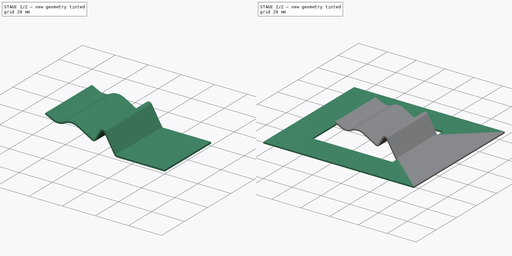
[diagram: build sequence overview — one tinted view per stage of 2, left to right]
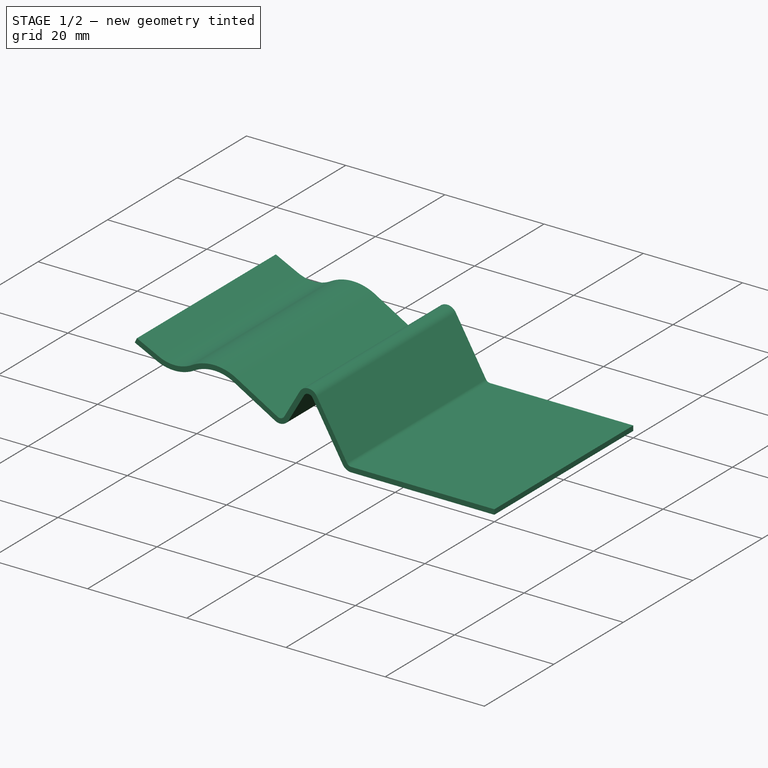
[diagram: stage 1 of 2 — iso view after this stage's code; geometry added in this stage tinted green]
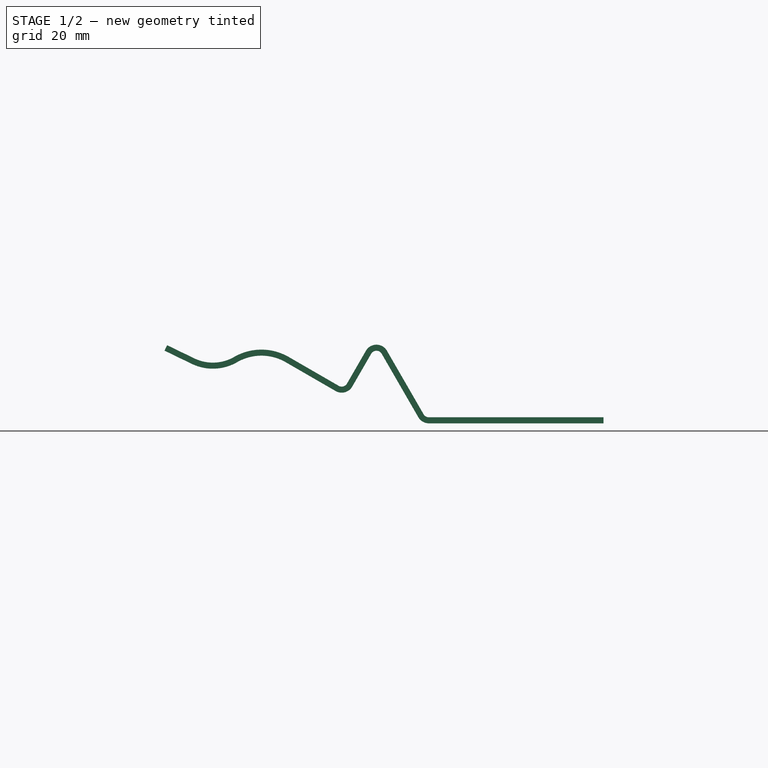
[diagram: stage 1 of 2 — front view after this stage's code; geometry added in this stage tinted green]
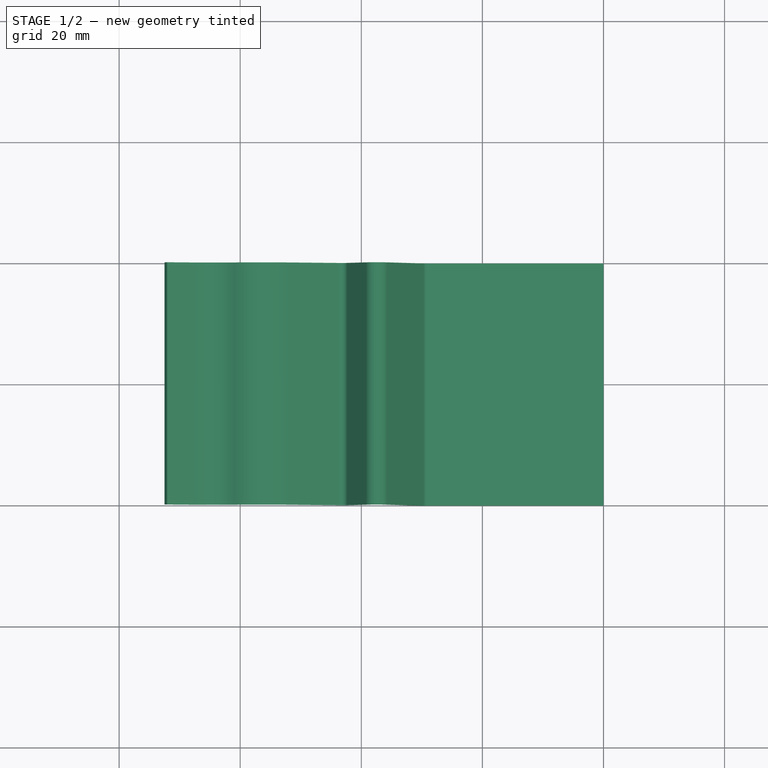
[diagram: stage 1 of 2 — top view after this stage's code; geometry added in this stage tinted green]
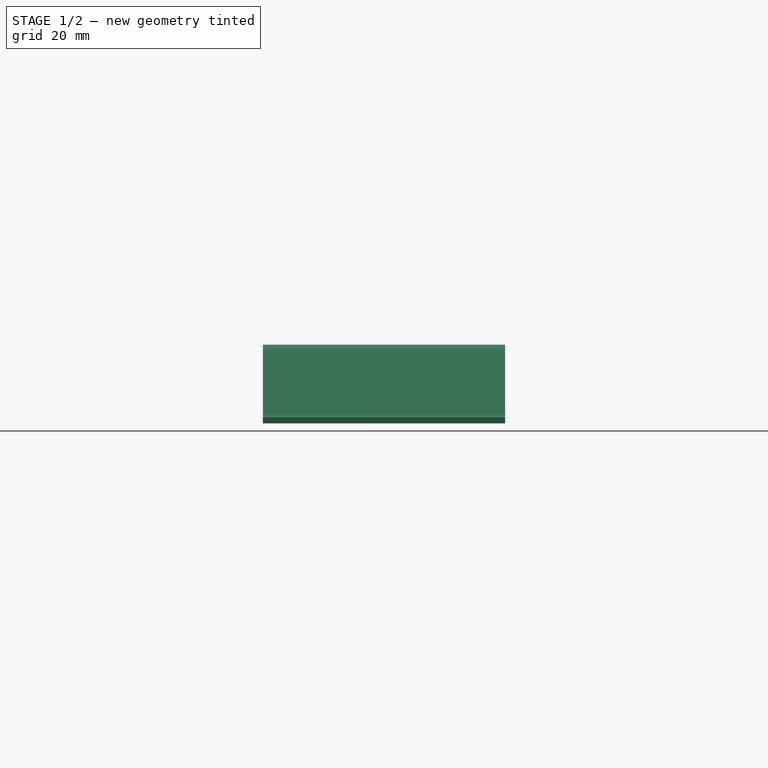
[diagram: stage 1 of 2 — right view after this stage's code; geometry added in this stage tinted green]
FCSTD DOCUMENT  (FreeCAD 0.19R23579 (Git))
Label: compicated_profile_extend_bend
License: All rights reserved
LicenseURL: http://en.wikipedia.org/wiki/All_rights_reserved
objects: Sketcher::SketchObject×6, PartDesign::FeaturePython×1, PartDesign::Pad×1, PartDesign::Body×1, Part::Feature×1, App::Part×1
note: 11 computed .brp shape members not serialized (recipe doc carries the construction recipe); baked Part::Feature solids carry a one-line shape summary decoded from their .brp

FEATURE [Sketcher::SketchObject] Sketch
  MapMode = 5
  Placement = pos=(0,0,0) rot=(1,0,0;1.5708rad)
  Support = -> [XZ_Plane]
  sketch-geometry (7):
    g0: LineSegment StartX=3e-16 StartY=-2.9e-15 StartZ=0 EndX=-30 EndY=-2.9e-15 EndZ=0
    g1: LineSegment StartX=-30 StartY=-2.9e-15 StartZ=0 EndX=-37.5 EndY=12.9904 EndZ=0
    g2: LineSegment StartX=-37.5 StartY=12.9904 StartZ=0 EndX=-42.5 EndY=4.33013 EndZ=0
    g3: LineSegment StartX=-42.5 StartY=4.33013 StartZ=0 EndX=-52.5 EndY=10.1036 EndZ=0
    g4: ArcOfCircle CenterX=-56.5 CenterY=3.17543 CenterZ=0 NormalX=0 NormalY=0 NormalZ=1 AngleXU=0 Radius=8 StartAngle=1.0472 EndAngle=2.09545
    g5: ArcOfCircle CenterX=-64.5147 CenterY=17.0234 CenterZ=0 NormalX=0 NormalY=0 NormalZ=1 AngleXU=0 Radius=8 StartAngle=4.26171 EndAngle=5.23705
    g6: LineSegment StartX=-67.9992 StartY=9.82214 StartZ=0 EndX=-72.5 EndY=12 EndZ=0
  constraints (20):
    c: Coincident(g-1,g0)
    c: Horizontal(g0)
    c: Coincident(g0,g1)
    c: Coincident(g1,g2)
    c: Coincident(g2,g3)
    c: Tangent(g3,g4) = -1.5708
    c: Tangent(g4,g5) = 1.5708
    c: Tangent(g6,g5) = 1.5708
    c: DistanceX(g0,g0) = 30
    c: DistanceX(g3,g3) = 10
    c: Distance(g6) = 5
    c: Perpendicular(g2,g3)
    c: Angle(g2,g1) = 1.0472
    c: Angle(g0,g1) = 2.0944
    c: Radius(g4) = 8
    c: Equal(g5,g4)
    c: DistanceY(g6) = 12
    c: DistanceX(g6,g1) = 35
    c: Distance(g1) = 15
    c: Distance(g2) = 10
FEATURE [PartDesign::FeaturePython] BaseBend  # WARN: FeaturePython — macro-defined, semantics opaque (R4)
  BendSide = 0
  BendSketch = -> Sketch
  MidPlane = true
  Reverse = false
  length = 40
  radius = 1
  thickness = 1
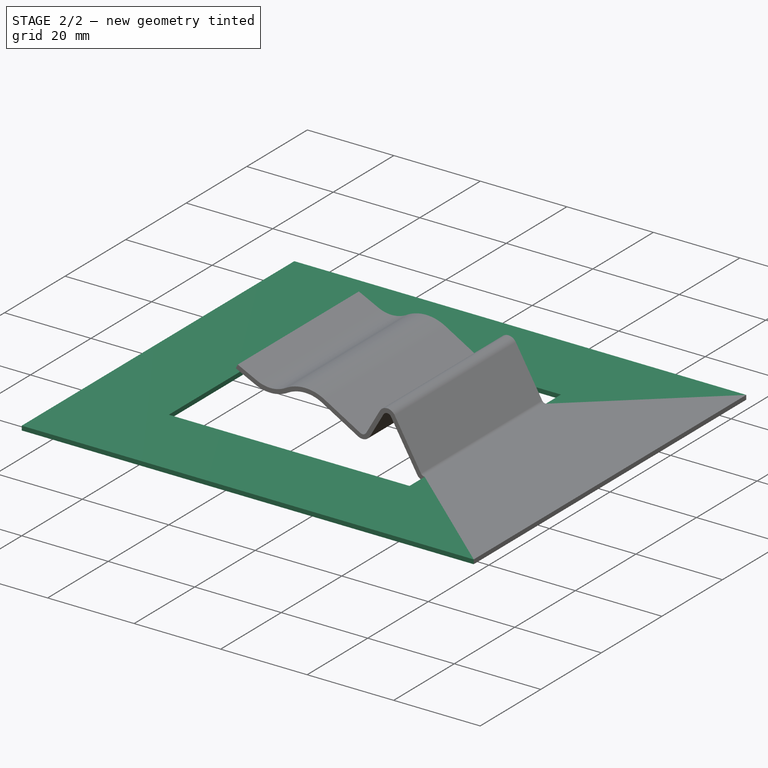
[diagram: stage 2 of 2 — iso view after this stage's code; geometry added in this stage tinted green]
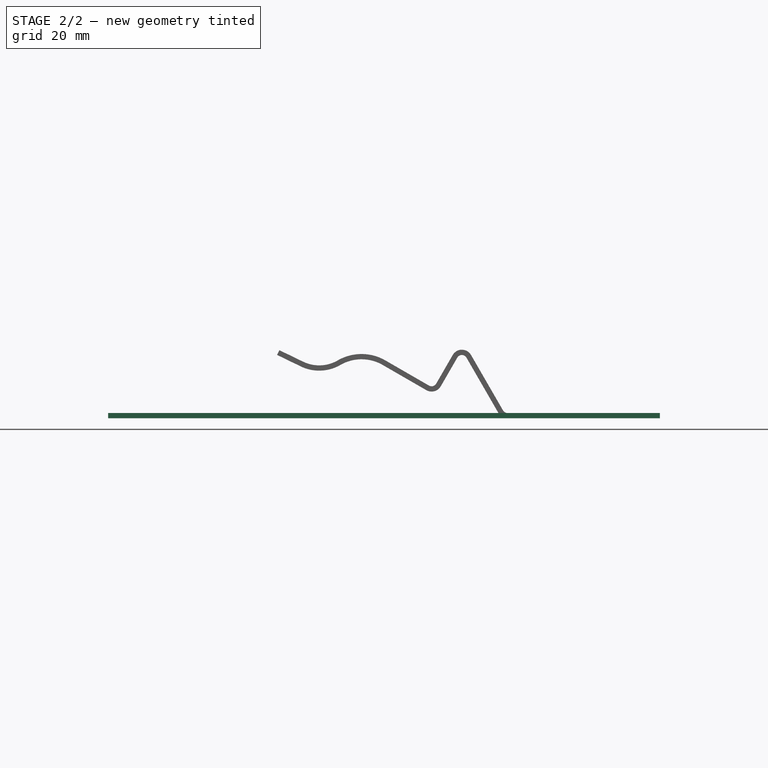
[diagram: stage 2 of 2 — front view after this stage's code; geometry added in this stage tinted green]
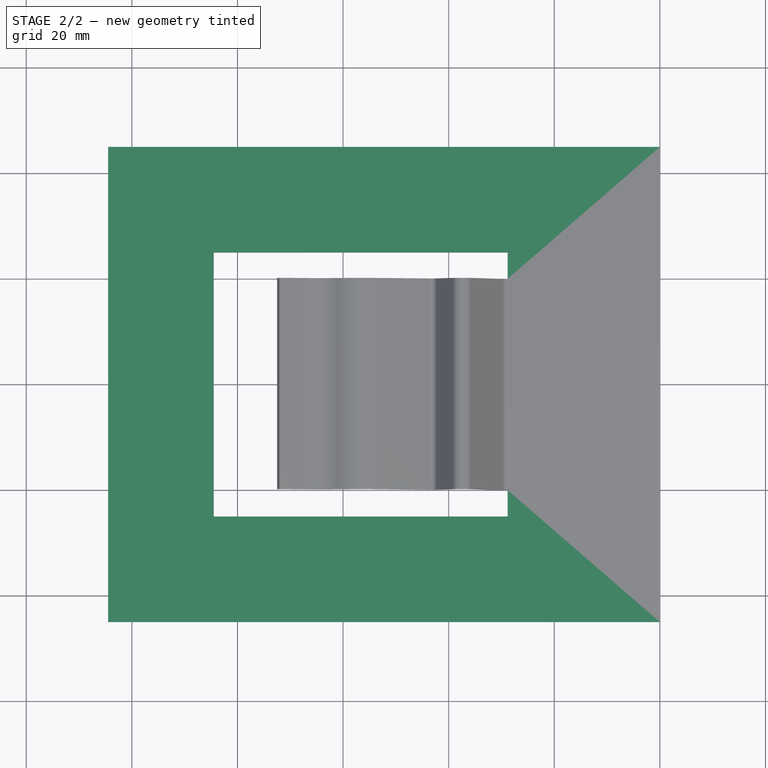
[diagram: stage 2 of 2 — top view after this stage's code; geometry added in this stage tinted green]
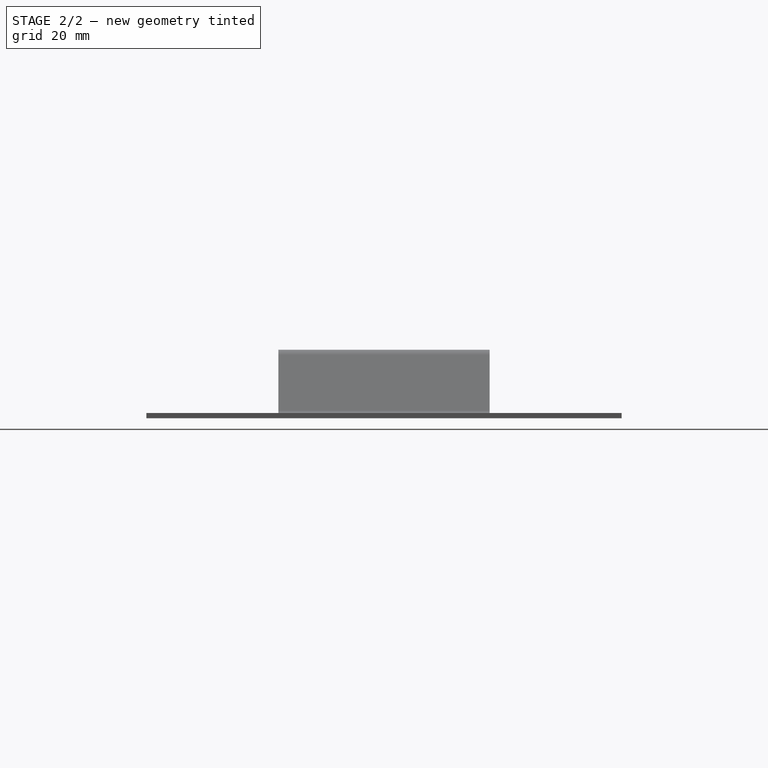
[diagram: stage 2 of 2 — right view after this stage's code; geometry added in this stage tinted green]
FEATURE [Sketcher::SketchObject] Sketch001
  ExternalGeometry = -> [BaseBend]
  MapMode = 5
  Support = -> [XY_Plane]
  sketch-geometry (8):
    g0: LineSegment StartX=0 StartY=45 StartZ=0 EndX=-104.5 EndY=45 EndZ=0
    g1: LineSegment StartX=-104.5 StartY=45 StartZ=0 EndX=-104.5 EndY=-45 EndZ=0
    g2: LineSegment StartX=-104.5 StartY=-45 StartZ=0 EndX=0 EndY=-45 EndZ=0
    g3: LineSegment StartX=-28.8453 StartY=25 StartZ=0 EndX=-84.5 EndY=25 EndZ=0
    g4: LineSegment StartX=-84.5 StartY=25 StartZ=0 EndX=-84.5 EndY=-25 EndZ=0
    g5: LineSegment StartX=-84.5 StartY=-25 StartZ=0 EndX=-28.8453 EndY=-25 EndZ=0
    g6: LineSegment StartX=0 StartY=-45 StartZ=0 EndX=0 EndY=45 EndZ=0
    g7: LineSegment StartX=-28.8453 StartY=-25 StartZ=0 EndX=-28.8453 EndY=25 EndZ=0
  constraints (22):
    c: Coincident(g0,g1)
    c: Coincident(g1,g2)
    c: Coincident(g6,g0)
    c: Horizontal(g0)
    c: Horizontal(g2)
    c: Vertical(g1)
    c: Coincident(g3,g4)
    c: Coincident(g4,g5)
    c: Horizontal(g3)
    c: Horizontal(g5)
    c: Vertical(g4)
    c: DistanceX(g4,g-3) = 12
    c: DistanceY(g4,g-3) = 5
    c: Vertical(g6)
    c: Coincident(g7,g5)
    c: Coincident(g7,g3)
    c: Symmetric(g6,g6,g-1)
    c: Coincident(g2,g6)
    c: PointOnObject(g-4,g7)
    c: Symmetric(g3,g5,g-1)
    c: DistanceY(g1,g4) = 20
    c: DistanceX(g1,g4) = 20
FEATURE [PartDesign::Pad] Pad
  BaseFeature = -> BaseBend
  Direction = (1,1,1)
  Length = 10
  Length2 = 100
  Profile = -> Sketch001
  Refine = true
  Type = 3
  UpToFace = -> BaseBend [Face35]
FEATURE [PartDesign::Body] Body
  Group = -> [Sketch,BaseBend,Sketch001,Pad]
  Origin = -> Origin
  Tip = -> Pad
FEATURE [Part::Feature] Unfold
  shape: bbox 104.5 x 90 x 1 mm, 14 faces (baked)
FEATURE [Sketcher::SketchObject] Unfold_Sketch
  sketch-geometry (12):
    g0: LineSegment StartX=-45 StartY=0 StartZ=0 EndX=45 EndY=0 EndZ=0
    g1: LineSegment StartX=45 StartY=0 StartZ=0 EndX=45 EndY=104.5 EndZ=0
    g2: LineSegment StartX=45 StartY=104.5 StartZ=0 EndX=-45 EndY=104.5 EndZ=0
    g3: LineSegment StartX=-45 StartY=104.5 StartZ=0 EndX=-45 EndY=0 EndZ=0
    g4: LineSegment StartX=-25 StartY=28.8453 StartZ=0 EndX=-20 EndY=28.8453 EndZ=0
    g5: LineSegment StartX=-25 StartY=84.5 StartZ=0 EndX=-25 EndY=28.8453 EndZ=0
    g6: LineSegment StartX=25 StartY=84.5 StartZ=0 EndX=-25 EndY=84.5 EndZ=0
    g7: LineSegment StartX=25 StartY=28.8453 StartZ=0 EndX=25 EndY=84.5 EndZ=0
    g8: LineSegment StartX=20 StartY=28.8453 StartZ=0 EndX=25 EndY=28.8453 EndZ=0
    g9: LineSegment StartX=-20 StartY=82.7096 StartZ=0 EndX=20 EndY=82.7096 EndZ=0
    g10: LineSegment StartX=-20 StartY=28.8453 StartZ=0 EndX=-20 EndY=82.7096 EndZ=0
    g11: LineSegment StartX=20 StartY=82.7096 StartZ=0 EndX=20 EndY=28.8453 EndZ=0
FEATURE [Sketcher::SketchObject] Unfold_Sketch_Outline
  sketch-geometry (4):
    g0: LineSegment StartX=-45 StartY=0 StartZ=0 EndX=45 EndY=0 EndZ=0
    g1: LineSegment StartX=45 StartY=0 StartZ=0 EndX=45 EndY=104.5 EndZ=0
    g2: LineSegment StartX=45 StartY=104.5 StartZ=0 EndX=-45 EndY=104.5 EndZ=0
    g3: LineSegment StartX=-45 StartY=104.5 StartZ=0 EndX=-45 EndY=0 EndZ=0
FEATURE [Sketcher::SketchObject] Unfold_Sketch_Internal
  sketch-geometry (8):
    g0: LineSegment StartX=-25 StartY=28.8453 StartZ=0 EndX=-20 EndY=28.8453 EndZ=0
    g1: LineSegment StartX=-20 StartY=28.8453 StartZ=0 EndX=-20 EndY=82.7096 EndZ=0
    g2: LineSegment StartX=-20 StartY=82.7096 StartZ=0 EndX=20 EndY=82.7096 EndZ=0
    g3: LineSegment StartX=20 StartY=82.7096 StartZ=0 EndX=20 EndY=28.8453 EndZ=0
    g4: LineSegment StartX=20 StartY=28.8453 StartZ=0 EndX=25 EndY=28.8453 EndZ=0
    g5: LineSegment StartX=25 StartY=28.8453 StartZ=0 EndX=25 EndY=84.5 EndZ=0
    g6: LineSegment StartX=25 StartY=84.5 StartZ=0 EndX=-25 EndY=84.5 EndZ=0
    g7: LineSegment StartX=-25 StartY=84.5 StartZ=0 EndX=-25 EndY=28.8453 EndZ=0
FEATURE [Sketcher::SketchObject] Unfold_Sketch_bends
  sketch-geometry (5):
    g0: LineSegment StartX=20 StartY=74.2228 StartZ=0 EndX=-20 EndY=74.2228 EndZ=0
    g1: LineSegment StartX=20 StartY=66.4644 StartZ=0 EndX=-20 EndY=66.4644 EndZ=0
    g2: LineSegment StartX=-20 StartY=51.7425 StartZ=0 EndX=20 EndY=51.7425 EndZ=0
    g3: LineSegment StartX=20 StartY=43.3671 StartZ=0 EndX=-20 EndY=43.3671 EndZ=0
    g4: LineSegment StartX=-20 StartY=29.4474 StartZ=0 EndX=20 EndY=29.4474 EndZ=0
FEATURE [App::Part] Part  label="unfold_set"
  Group = -> [Unfold,Unfold_Sketch,Unfold_Sketch_Outline,Unfold_Sketch_Internal,Unfold_Sketch_bends]
  Origin = -> Origin001
  Placement = pos=(0,99,0) rot=(0,0,1;0rad)
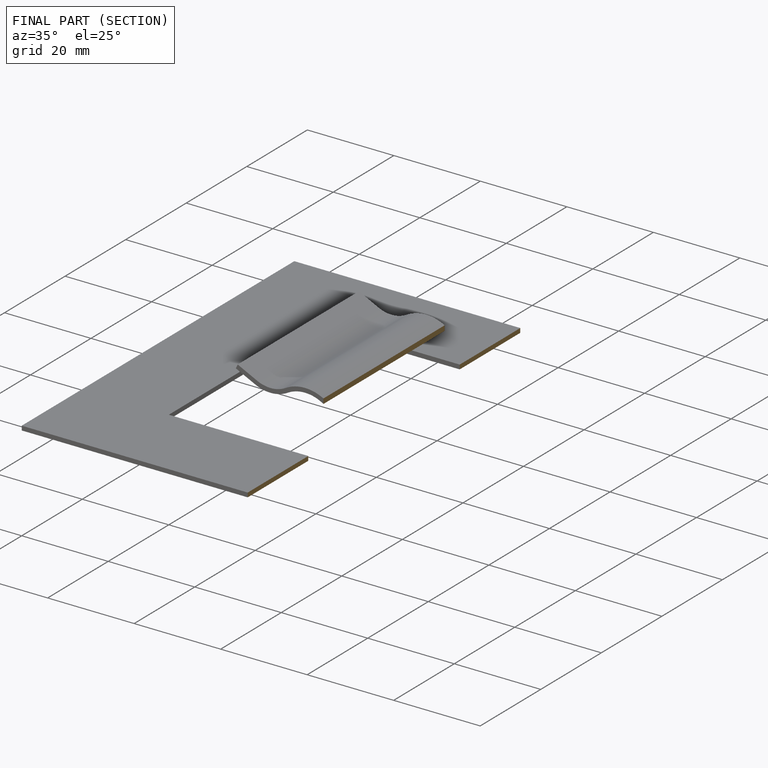
[diagram: finished part — half-section view (interior)]
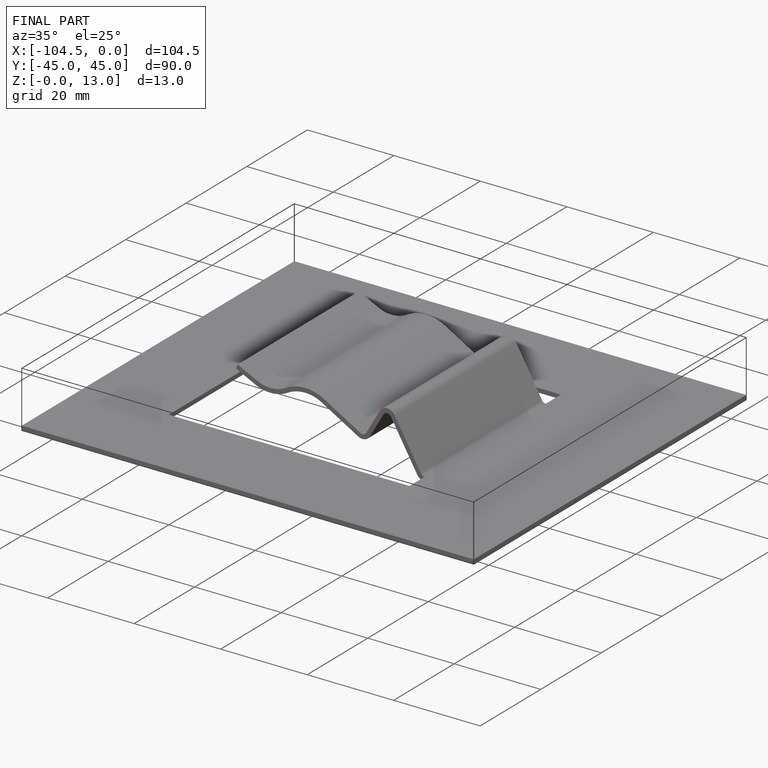
[diagram: finished part — iso view with bounding-box wireframe]
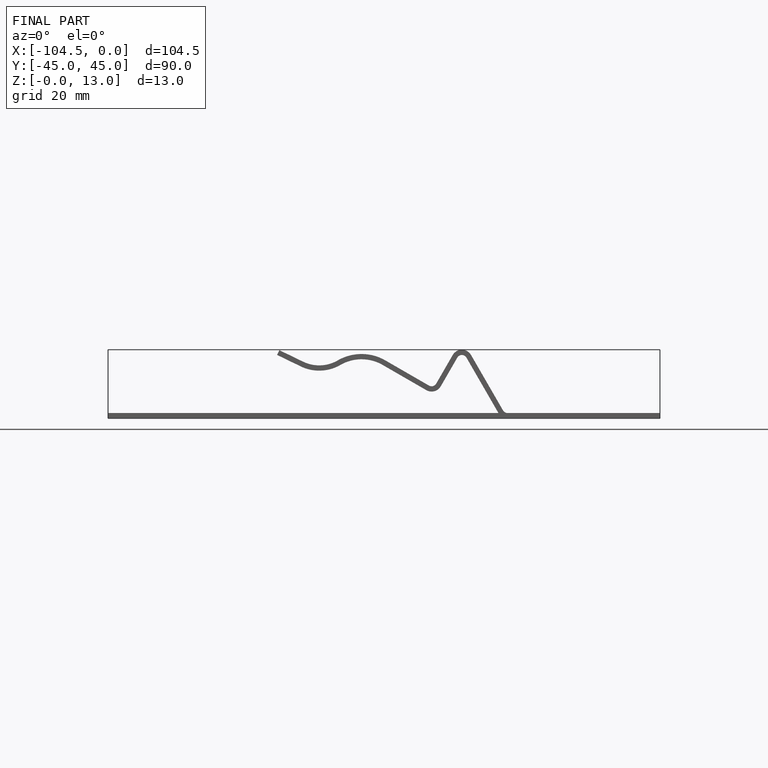
[diagram: finished part — front view with bounding-box wireframe]
